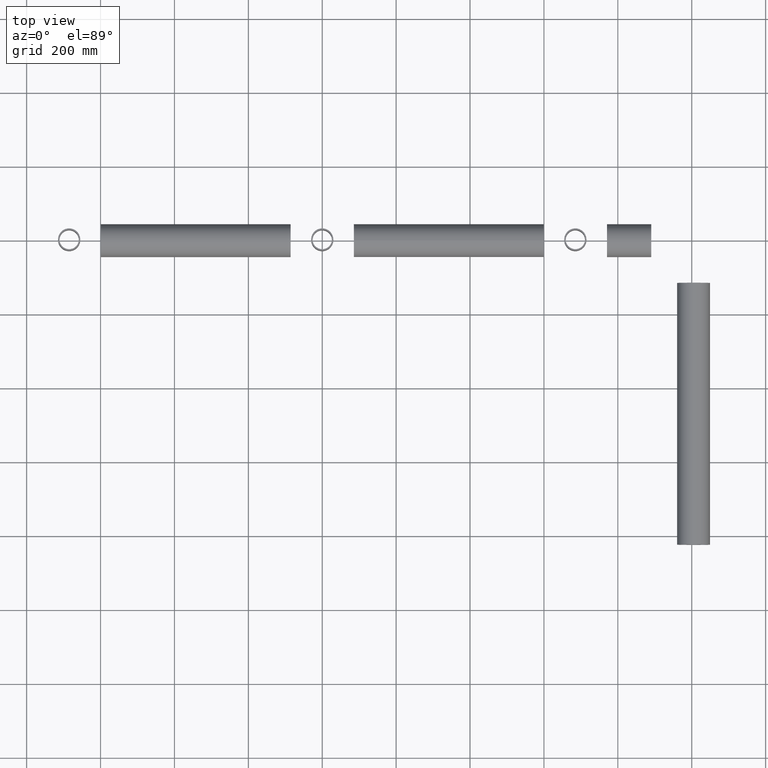
[diagram: clean part render]
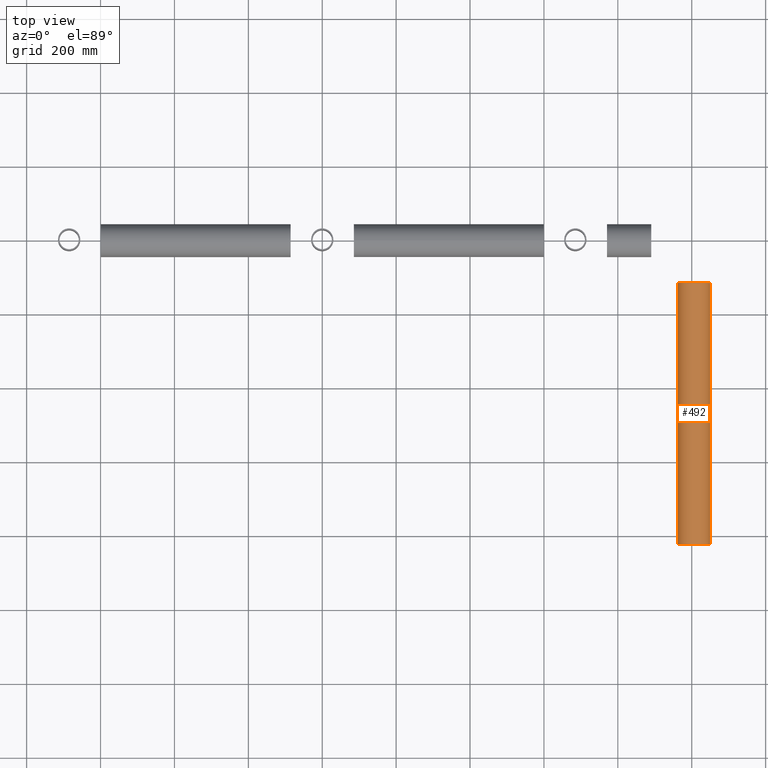
[diagram: same view with one face highlighted and labeled with its STEP entity id]
A machine part, top view. The second image highlights one B-rep face of the part: STEP entity #492.
In plain terms, the highlighted cylindrical surface (edge-blend (fillet) strip) has radius 44.45 mm, axis along (0, -1, -0).
Its self-contained STEP definition (entity closure, byte-faithful):
#8 = CARTESIAN_POINT ( 'NONE',  ( 1004.999999999999886, -114.5000000000000426, 0.000000000000000000 ) ) ;
#38 = VECTOR ( 'NONE', #732, 1000.000000000000000 ) ;
#80 = ORIENTED_EDGE ( 'NONE', *, *, #403, .F. ) ;
#214 = CARTESIAN_POINT ( 'NONE',  ( 960.5499999999999545, -114.5000000000000711, 5.443555022209984909E-15 ) ) ;
#221 = CARTESIAN_POINT ( 'NONE',  ( 960.5500000000002956, -823.0000000000000000, 5.443555022209987275E-15 ) ) ;
#256 = DIRECTION ( 'NONE',  ( -1.000000000000000000, 0.000000000000000000, 0.000000000000000000 ) ) ;
#268 = CYLINDRICAL_SURFACE ( 'NONE', #530, 44.45000000000010232 ) ;
#280 = AXIS2_PLACEMENT_3D ( 'NONE', #8, #367, #772 ) ;
#359 = VERTEX_POINT ( 'NONE', #760 ) ;
#367 = DIRECTION ( 'NONE',  ( -6.268019899083453926E-16, 1.000000000000000000, 0.000000000000000000 ) ) ;
#403 = EDGE_CURVE ( 'NONE', #359, #736, #591, .T. ) ;
#439 = VECTOR ( 'NONE', #1003, 1000.000000000000000 ) ;
#460 = DIRECTION ( 'NONE',  ( 1.000000000000000000, 6.244223985518301137E-16, 0.000000000000000000 ) ) ;
#482 = CARTESIAN_POINT ( 'NONE',  ( 1049.450000000000500, -823.0000000000000000, 0.000000000000000000 ) ) ;
#492 = ADVANCED_FACE ( 'NONE', ( #940 ), #268, .T. ) ;
#530 = AXIS2_PLACEMENT_3D ( 'NONE', #549, #665, #460 ) ;
#533 = LINE ( 'NONE', #919, #439 ) ;
#549 = CARTESIAN_POINT ( 'NONE',  ( 1004.999999999999886, -114.5000000000000426, 0.000000000000000000 ) ) ;
#591 = CIRCLE ( 'NONE', #280, 44.44999999999998863 ) ;
#665 = DIRECTION ( 'NONE',  ( 6.268019899083453926E-16, -1.000000000000000000, -0.000000000000000000 ) ) ;
#671 = ORIENTED_EDGE ( 'NONE', *, *, #1129, .T. ) ;
#718 = AXIS2_PLACEMENT_3D ( 'NONE', #1211, #750, #256 ) ;
#732 = DIRECTION ( 'NONE',  ( 6.268019899083453926E-16, -1.000000000000000000, -0.000000000000000000 ) ) ;
#736 = VERTEX_POINT ( 'NONE', #1065 ) ;
#750 = DIRECTION ( 'NONE',  ( -6.268019899083453926E-16, 1.000000000000000000, 0.000000000000000000 ) ) ;
#760 = CARTESIAN_POINT ( 'NONE',  ( 960.5499999999999545, -114.5000000000000711, 5.443555022210014885E-15 ) ) ;
#772 = DIRECTION ( 'NONE',  ( -1.000000000000000000, -6.244223985518316914E-16, 0.000000000000000000 ) ) ;
#825 = LINE ( 'NONE', #214, #38 ) ;
#880 = CIRCLE ( 'NONE', #718, 44.44999999999998863 ) ;
#903 = EDGE_CURVE ( 'NONE', #359, #924, #825, .T. ) ;
#914 = EDGE_CURVE ( 'NONE', #736, #1190, #533, .T. ) ;
#919 = CARTESIAN_POINT ( 'NONE',  ( 1049.450000000000045, -114.5000000000000142, 0.000000000000000000 ) ) ;
#924 = VERTEX_POINT ( 'NONE', #221 ) ;
#940 = FACE_OUTER_BOUND ( 'NONE', #1208, .T. ) ;
#965 = ORIENTED_EDGE ( 'NONE', *, *, #914, .F. ) ;
#1003 = DIRECTION ( 'NONE',  ( 6.268019899083453926E-16, -1.000000000000000000, -0.000000000000000000 ) ) ;
#1007 = ORIENTED_EDGE ( 'NONE', *, *, #903, .T. ) ;
#1065 = CARTESIAN_POINT ( 'NONE',  ( 1049.450000000000045, -114.5000000000000142, 0.000000000000000000 ) ) ;
#1129 = EDGE_CURVE ( 'NONE', #924, #1190, #880, .T. ) ;
#1190 = VERTEX_POINT ( 'NONE', #482 ) ;
#1208 = EDGE_LOOP ( 'NONE', ( #80, #1007, #671, #965 ) ) ;
#1211 = CARTESIAN_POINT ( 'NONE',  ( 1005.000000000000341, -823.0000000000000000, 0.000000000000000000 ) ) ;